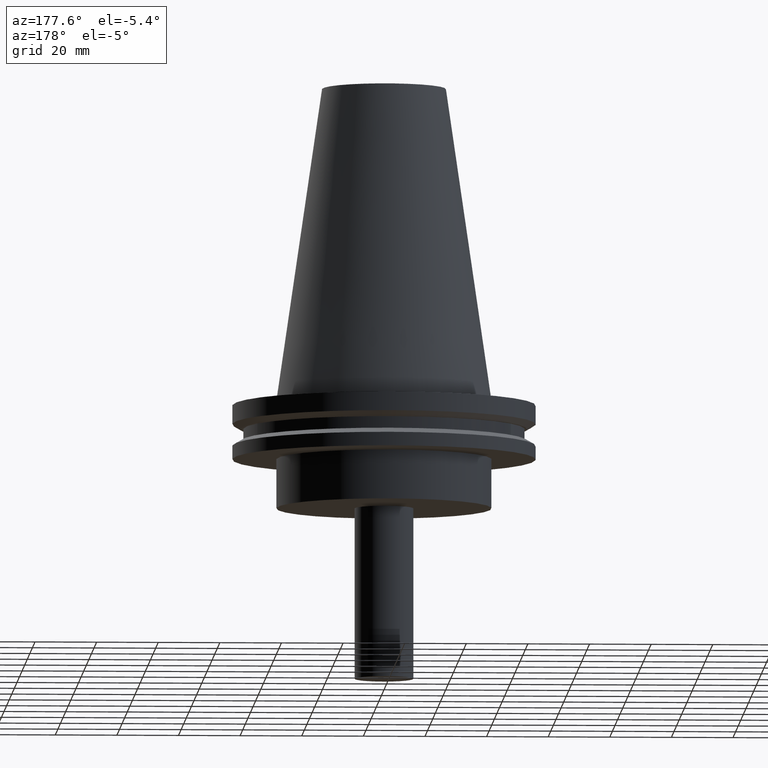
[diagram: clean part render]
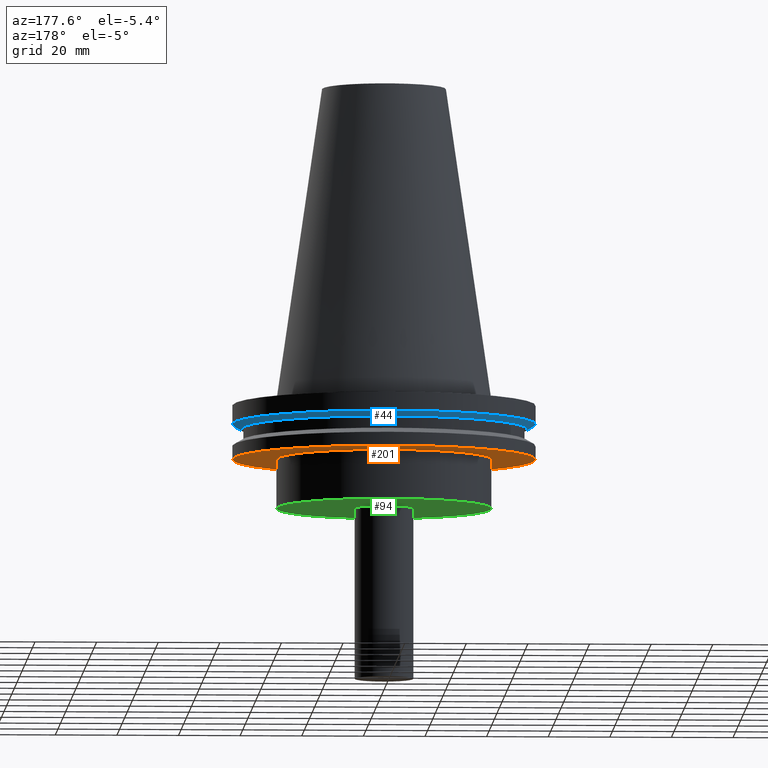
[diagram: same view with three faces highlighted in distinct colors, each labeled with its STEP entity id]
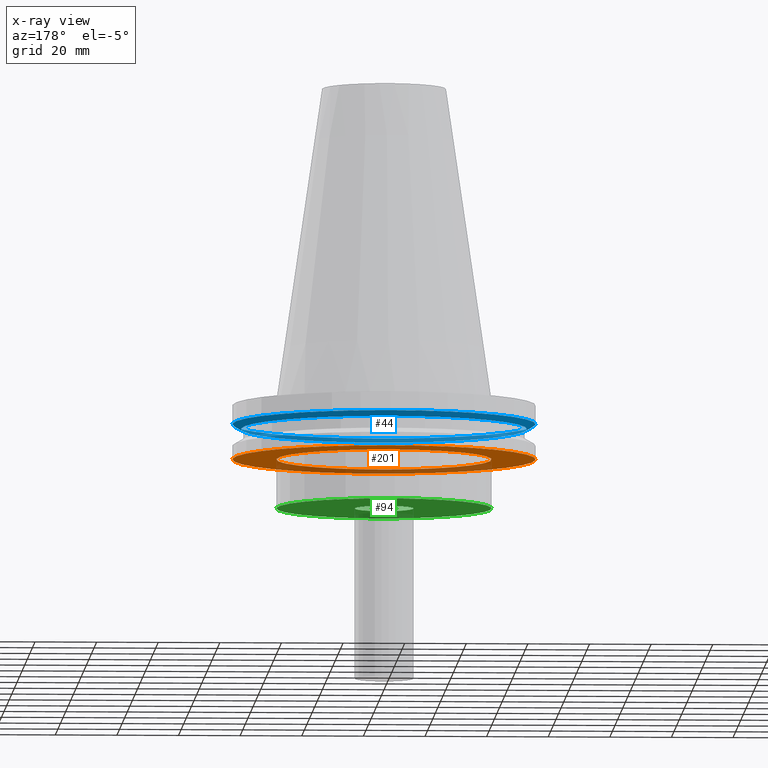
[diagram: x-ray of the same camera — body ghosted, the three highlighted faces saturated]
A machine part, auxiliary view with three faces highlighted in distinct colors.
The next image is the same camera in x-ray (body ghosted, the three faces saturated) — at least one of them is partly hidden behind the body in this view.
Their STEP definitions:

[orange] entity #201 — the highlighted planar face has unit normal (0, -0, 1).
#7 = CARTESIAN_POINT ( 'NONE',  ( 0.000000000000000000, 49.21499999999998920, -19.04999999999999716 ) ) ;
#36 = EDGE_LOOP ( 'NONE', ( #237 ) ) ;
#50 = DIRECTION ( 'NONE',  ( 1.000000000000000000, 0.000000000000000000, 0.000000000000000000 ) ) ;
#77 = FACE_OUTER_BOUND ( 'NONE', #36, .T. ) ;
#111 = EDGE_CURVE ( 'NONE', #373, #373, #206, .T. ) ;
#128 = DIRECTION ( 'NONE',  ( 0.000000000000000000, -0.000000000000000000, 1.000000000000000000 ) ) ;
#152 = VERTEX_POINT ( 'NONE', #281 ) ;
#159 = AXIS2_PLACEMENT_3D ( 'NONE', #165, #381, #346 ) ;
#165 = CARTESIAN_POINT ( 'NONE',  ( 0.000000000000000000, 0.000000000000000000, -19.04999999999999716 ) ) ;
#171 = FACE_BOUND ( 'NONE', #211, .T. ) ;
#174 = AXIS2_PLACEMENT_3D ( 'NONE', #360, #230, #50 ) ;
#180 = CIRCLE ( 'NONE', #174, 49.21499999999998920 ) ;
#184 = ORIENTED_EDGE ( 'NONE', *, *, #111, .T. ) ;
#197 = PLANE ( 'NONE',  #387 ) ;
#201 = ADVANCED_FACE ( 'NONE', ( #77, #171 ), #197, .F. ) ;
#206 = CIRCLE ( 'NONE', #159, 34.92499999999999716 ) ;
#211 = EDGE_LOOP ( 'NONE', ( #184 ) ) ;
#230 = DIRECTION ( 'NONE',  ( -0.000000000000000000, -0.000000000000000000, 1.000000000000000000 ) ) ;
#237 = ORIENTED_EDGE ( 'NONE', *, *, #271, .F. ) ;
#254 = DIRECTION ( 'NONE',  ( 1.000000000000000000, 0.000000000000000000, 0.000000000000000000 ) ) ;
#271 = EDGE_CURVE ( 'NONE', #152, #152, #180, .T. ) ;
#281 = CARTESIAN_POINT ( 'NONE',  ( 49.21499999999998920, 0.000000000000000000, -19.04999999999999716 ) ) ;
#307 = CARTESIAN_POINT ( 'NONE',  ( 34.92499999999999716, 0.000000000000000000, -19.04999999999999716 ) ) ;
#346 = DIRECTION ( 'NONE',  ( 1.000000000000000000, 0.000000000000000000, 0.000000000000000000 ) ) ;
#360 = CARTESIAN_POINT ( 'NONE',  ( 0.000000000000000000, 0.000000000000000000, -19.04999999999999716 ) ) ;
#373 = VERTEX_POINT ( 'NONE', #307 ) ;
#381 = DIRECTION ( 'NONE',  ( -0.000000000000000000, -0.000000000000000000, 1.000000000000000000 ) ) ;
#387 = AXIS2_PLACEMENT_3D ( 'NONE', #7, #128, #254 ) ;

[blue] entity #44 — the highlighted conical surface has half-angle 60 deg.
#4 = CARTESIAN_POINT ( 'NONE',  ( 49.21500000000000341, 0.000000000000000000, -7.602389855251287187 ) ) ;
#22 = DIRECTION ( 'NONE',  ( 1.000000000000000000, 0.000000000000000000, 0.000000000000000000 ) ) ;
#44 = ADVANCED_FACE ( 'NONE', ( #365, #87 ), #118, .T. ) ;
#60 = VERTEX_POINT ( 'NONE', #4 ) ;
#61 = EDGE_LOOP ( 'NONE', ( #93 ) ) ;
#85 = DIRECTION ( 'NONE',  ( -0.000000000000000000, -0.000000000000000000, 1.000000000000000000 ) ) ;
#87 = FACE_BOUND ( 'NONE', #215, .T. ) ;
#92 = CARTESIAN_POINT ( 'NONE',  ( 46.43919780457007818, 0.000000000000000000, -9.204999999999991189 ) ) ;
#93 = ORIENTED_EDGE ( 'NONE', *, *, #164, .F. ) ;
#100 = DIRECTION ( 'NONE',  ( -0.000000000000000000, -0.000000000000000000, 1.000000000000000000 ) ) ;
#118 = CONICAL_SURFACE ( 'NONE', #384, 46.43919780457007818, 1.047197551196575205 ) ;
#150 = DIRECTION ( 'NONE',  ( -0.000000000000000000, -0.000000000000000000, 1.000000000000000000 ) ) ;
#160 = CIRCLE ( 'NONE', #266, 49.21500000000000341 ) ;
#161 = CARTESIAN_POINT ( 'NONE',  ( 0.000000000000000000, 0.000000000000000000, -7.602389855251287187 ) ) ;
#164 = EDGE_CURVE ( 'NONE', #60, #60, #160, .T. ) ;
#208 = CARTESIAN_POINT ( 'NONE',  ( 0.000000000000000000, 0.000000000000000000, -9.204999999999991189 ) ) ;
#210 = CIRCLE ( 'NONE', #268, 46.43919780457007818 ) ;
#215 = EDGE_LOOP ( 'NONE', ( #332 ) ) ;
#222 = DIRECTION ( 'NONE',  ( 1.000000000000000000, 0.000000000000000000, 0.000000000000000000 ) ) ;
#266 = AXIS2_PLACEMENT_3D ( 'NONE', #161, #100, #222 ) ;
#268 = AXIS2_PLACEMENT_3D ( 'NONE', #335, #85, #22 ) ;
#275 = DIRECTION ( 'NONE',  ( 1.000000000000000000, 0.000000000000000000, 0.000000000000000000 ) ) ;
#332 = ORIENTED_EDGE ( 'NONE', *, *, #372, .T. ) ;
#335 = CARTESIAN_POINT ( 'NONE',  ( 0.000000000000000000, 0.000000000000000000, -9.204999999999991189 ) ) ;
#365 = FACE_OUTER_BOUND ( 'NONE', #61, .T. ) ;
#370 = VERTEX_POINT ( 'NONE', #92 ) ;
#372 = EDGE_CURVE ( 'NONE', #370, #370, #210, .T. ) ;
#384 = AXIS2_PLACEMENT_3D ( 'NONE', #208, #150, #275 ) ;

[green] entity #94 — the highlighted planar face has unit normal (0, -0, 1).
#15 = CARTESIAN_POINT ( 'NONE',  ( 0.000000000000000000, 0.000000000000000000, -35.00000000000000000 ) ) ;
#73 = DIRECTION ( 'NONE',  ( 0.000000000000000000, -0.000000000000000000, 1.000000000000000000 ) ) ;
#74 = EDGE_CURVE ( 'NONE', #114, #114, #285, .T. ) ;
#94 = ADVANCED_FACE ( 'NONE', ( #133, #319 ), #168, .F. ) ;
#98 = DIRECTION ( 'NONE',  ( 1.000000000000000000, 0.000000000000000000, 0.000000000000000000 ) ) ;
#106 = AXIS2_PLACEMENT_3D ( 'NONE', #378, #73, #98 ) ;
#114 = VERTEX_POINT ( 'NONE', #273 ) ;
#131 = DIRECTION ( 'NONE',  ( 1.000000000000000000, 0.000000000000000000, 0.000000000000000000 ) ) ;
#133 = FACE_BOUND ( 'NONE', #213, .T. ) ;
#168 = PLANE ( 'NONE',  #106 ) ;
#181 = ORIENTED_EDGE ( 'NONE', *, *, #74, .T. ) ;
#202 = DIRECTION ( 'NONE',  ( -0.000000000000000000, -0.000000000000000000, 1.000000000000000000 ) ) ;
#213 = EDGE_LOOP ( 'NONE', ( #181 ) ) ;
#221 = DIRECTION ( 'NONE',  ( -0.000000000000000000, -0.000000000000000000, 1.000000000000000000 ) ) ;
#231 = CIRCLE ( 'NONE', #321, 34.92499999999999716 ) ;
#248 = VERTEX_POINT ( 'NONE', #363 ) ;
#249 = ORIENTED_EDGE ( 'NONE', *, *, #264, .F. ) ;
#263 = AXIS2_PLACEMENT_3D ( 'NONE', #15, #221, #131 ) ;
#264 = EDGE_CURVE ( 'NONE', #248, #248, #231, .T. ) ;
#270 = CARTESIAN_POINT ( 'NONE',  ( 0.000000000000000000, 0.000000000000000000, -35.00000000000000000 ) ) ;
#273 = CARTESIAN_POINT ( 'NONE',  ( 9.524999999999998579, 0.000000000000000000, -35.00000000000000000 ) ) ;
#285 = CIRCLE ( 'NONE', #263, 9.524999999999998579 ) ;
#302 = EDGE_LOOP ( 'NONE', ( #249 ) ) ;
#319 = FACE_OUTER_BOUND ( 'NONE', #302, .T. ) ;
#321 = AXIS2_PLACEMENT_3D ( 'NONE', #270, #202, #331 ) ;
#331 = DIRECTION ( 'NONE',  ( 1.000000000000000000, 0.000000000000000000, 0.000000000000000000 ) ) ;
#363 = CARTESIAN_POINT ( 'NONE',  ( 34.92499999999999716, 0.000000000000000000, -35.00000000000000000 ) ) ;
#378 = CARTESIAN_POINT ( 'NONE',  ( 0.000000000000000000, 34.92499999999999716, -35.00000000000000000 ) ) ;